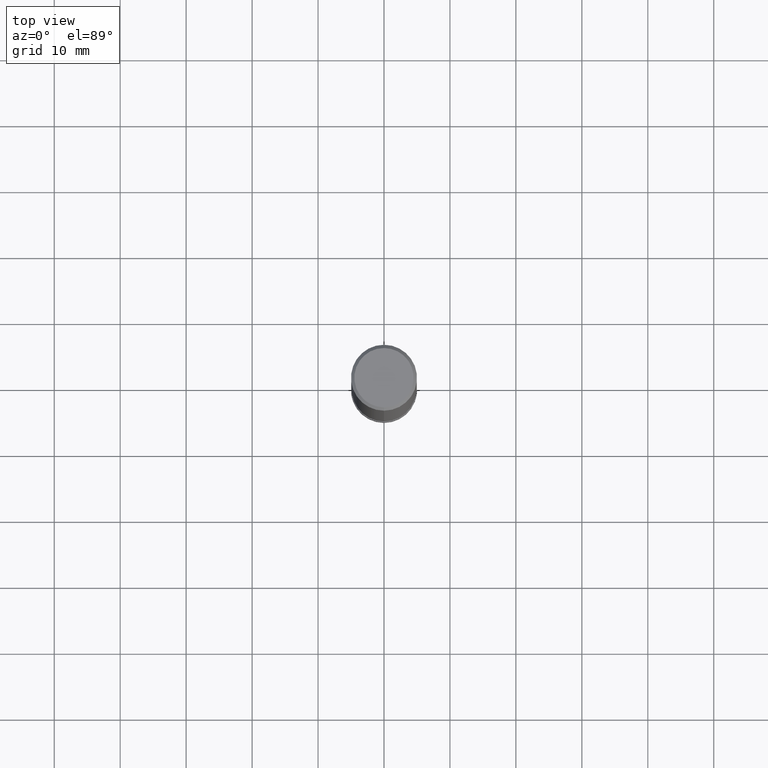
[diagram: clean part render]
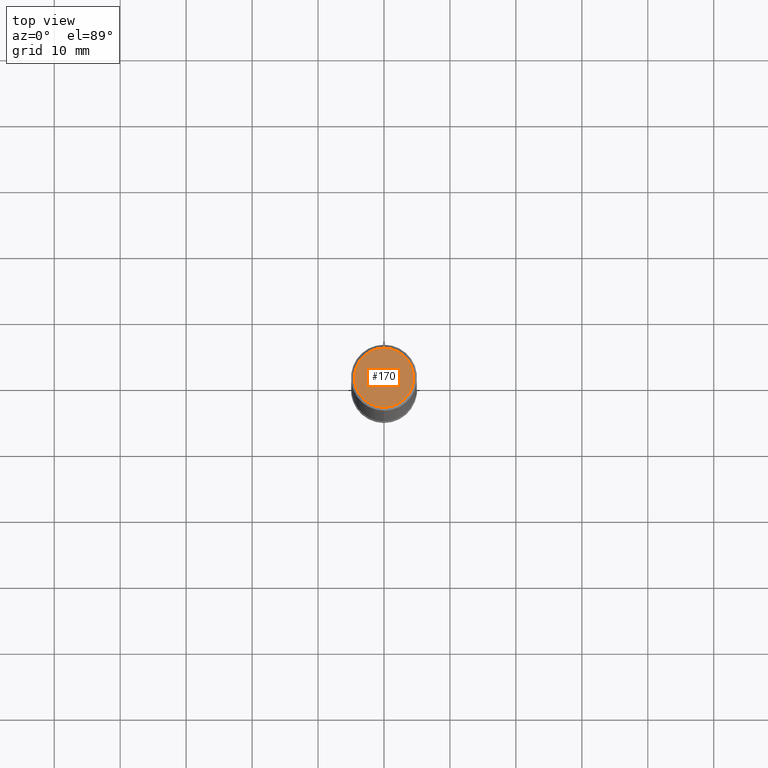
[diagram: same view with one face highlighted and labeled with its STEP entity id]
A machine part, top view. The second image highlights one B-rep face of the part: STEP entity #170.
In plain terms, the highlighted planar face has unit normal (-0, 0, 1).
Its self-contained STEP definition (entity closure, byte-faithful):
#118=VERTEX_POINT('',#257);
#150=EDGE_CURVE('',#118,#188,#293,.T.);
#170=ADVANCED_FACE('',(#314),#315,.T.);
#188=VERTEX_POINT('',#338);
#204=EDGE_CURVE('',#188,#118,#355,.T.);
#257=CARTESIAN_POINT('',(5.5107285922007E-016,-4.5,0.0));
#293=CIRCLE('',#454,4.5);
#314=FACE_OUTER_BOUND('',#480,.T.);
#315=PLANE('',#481);
#338=CARTESIAN_POINT('',(0.0,4.5,0.0));
#355=CIRCLE('',#532,4.5);
#454=AXIS2_PLACEMENT_3D('',#614,#615,#616);
#480=EDGE_LOOP('',(#634,#635));
#481=AXIS2_PLACEMENT_3D('',#636,#637,#638);
#532=AXIS2_PLACEMENT_3D('',#699,#700,#701);
#614=CARTESIAN_POINT('',(0.0,0.0,0.0));
#615=DIRECTION('',(0.0,0.0,-1.0));
#616=DIRECTION('',(0.0,1.0,0.0));
#634=ORIENTED_EDGE('',*,*,#204,.F.);
#635=ORIENTED_EDGE('',*,*,#150,.F.);
#636=CARTESIAN_POINT('',(0.0,2.25,0.0));
#637=DIRECTION('',(-0.0,0.0,1.0));
#638=DIRECTION('',(0.0,-1.0,0.0));
#699=CARTESIAN_POINT('',(0.0,0.0,0.0));
#700=DIRECTION('',(0.0,0.0,-1.0));
#701=DIRECTION('',(0.0,1.0,0.0));